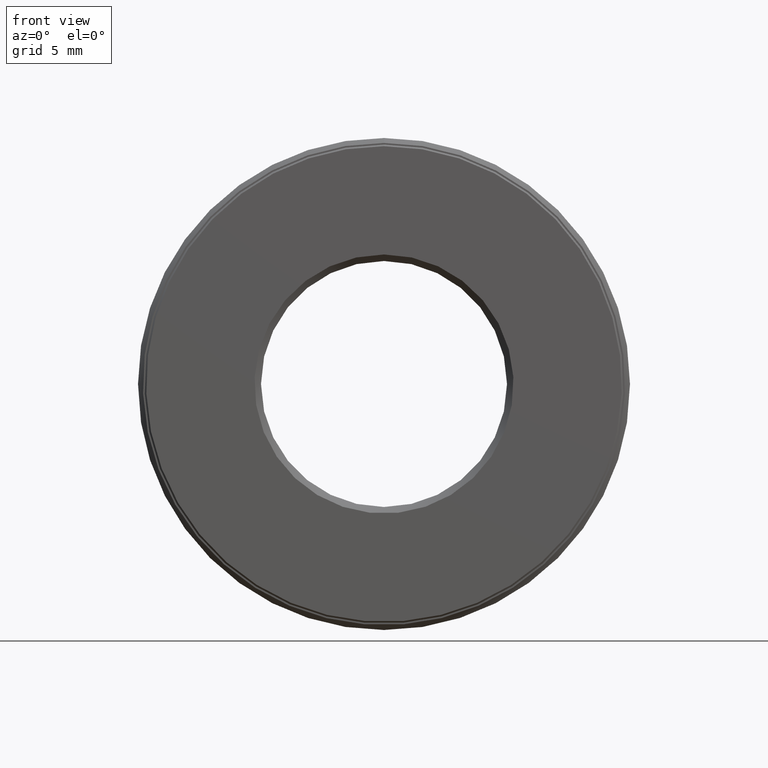
[diagram: clean part render]
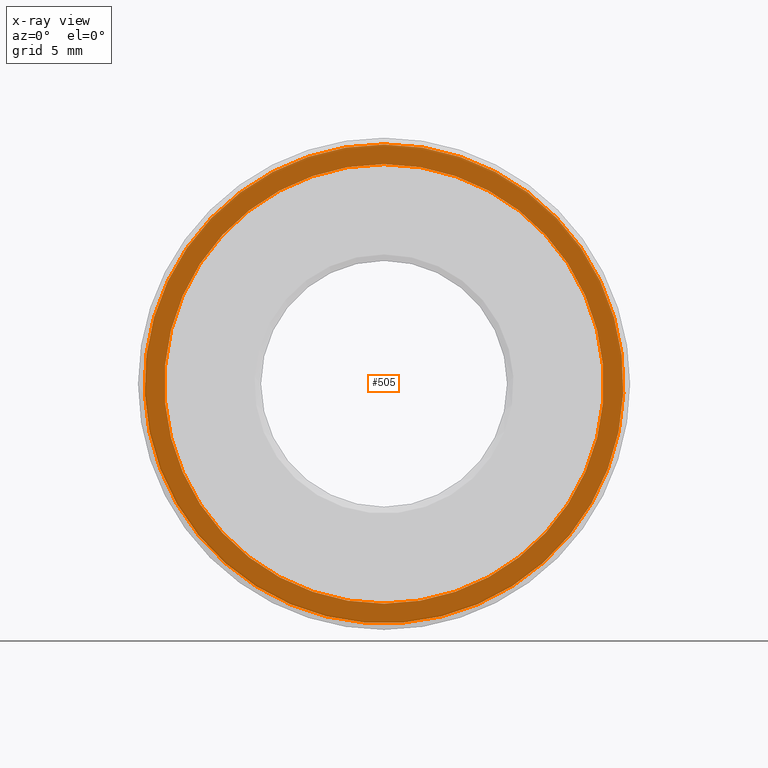
[diagram: x-ray — body ghosted, one internal face saturated and labeled with its STEP entity id]
A machine part, front view, then the same camera in x-ray: the body is ghosted and one INTERNAL B-rep face — a face not visible from any outside direction — is saturated and labeled: STEP entity #505.
In plain terms, the highlighted planar face has unit normal (-0, 1, 0).
Its self-contained STEP definition (entity closure, byte-faithful):
#9 = FACE_OUTER_BOUND ( 'NONE', #244, .T. ) ;
#14 = AXIS2_PLACEMENT_3D ( 'NONE', #363, #49, #187 ) ;
#20 = CARTESIAN_POINT ( 'NONE',  ( 0.0000000000000000000, 0.6524999999999997500, 0.0000000000000000000 ) ) ;
#49 = DIRECTION ( 'NONE',  ( -0.0000000000000000000, 1.000000000000000000, -0.0000000000000000000 ) ) ;
#68 = PLANE ( 'NONE',  #461 ) ;
#85 = VERTEX_POINT ( 'NONE', #449 ) ;
#116 = DIRECTION ( 'NONE',  ( 0.0000000000000000000, 0.0000000000000000000, 1.000000000000000000 ) ) ;
#135 = ORIENTED_EDGE ( 'NONE', *, *, #391, .F. ) ;
#161 = DIRECTION ( 'NONE',  ( -0.0000000000000000000, 1.000000000000000000, -0.0000000000000000000 ) ) ;
#187 = DIRECTION ( 'NONE',  ( 0.0000000000000000000, 0.0000000000000000000, 1.000000000000000000 ) ) ;
#201 = EDGE_CURVE ( 'NONE', #85, #85, #298, .T. ) ;
#237 = CARTESIAN_POINT ( 'NONE',  ( 0.0000000000000000000, 0.6524999999999997500, 0.0000000000000000000 ) ) ;
#244 = EDGE_LOOP ( 'NONE', ( #135 ) ) ;
#298 = CIRCLE ( 'NONE', #14, 0.6700000000000000400 ) ;
#303 = AXIS2_PLACEMENT_3D ( 'NONE', #237, #161, #432 ) ;
#339 = CARTESIAN_POINT ( 'NONE',  ( 0.0000000000000000000, 0.6524999999999997500, 0.7299999999999998700 ) ) ;
#360 = ORIENTED_EDGE ( 'NONE', *, *, #201, .T. ) ;
#363 = CARTESIAN_POINT ( 'NONE',  ( 0.0000000000000000000, 0.6524999999999997500, 0.0000000000000000000 ) ) ;
#391 = EDGE_CURVE ( 'NONE', #472, #472, #431, .T. ) ;
#431 = CIRCLE ( 'NONE', #303, 0.7299999999999998700 ) ;
#432 = DIRECTION ( 'NONE',  ( 0.0000000000000000000, 0.0000000000000000000, 1.000000000000000000 ) ) ;
#449 = CARTESIAN_POINT ( 'NONE',  ( 0.0000000000000000000, 0.6524999999999997500, 0.6700000000000000400 ) ) ;
#461 = AXIS2_PLACEMENT_3D ( 'NONE', #20, #579, #116 ) ;
#472 = VERTEX_POINT ( 'NONE', #339 ) ;
#505 = ADVANCED_FACE ( 'NONE', ( #9, #532 ), #68, .F. ) ;
#532 = FACE_BOUND ( 'NONE', #547, .T. ) ;
#547 = EDGE_LOOP ( 'NONE', ( #360 ) ) ;
#579 = DIRECTION ( 'NONE',  ( -0.0000000000000000000, 1.000000000000000000, 0.0000000000000000000 ) ) ;